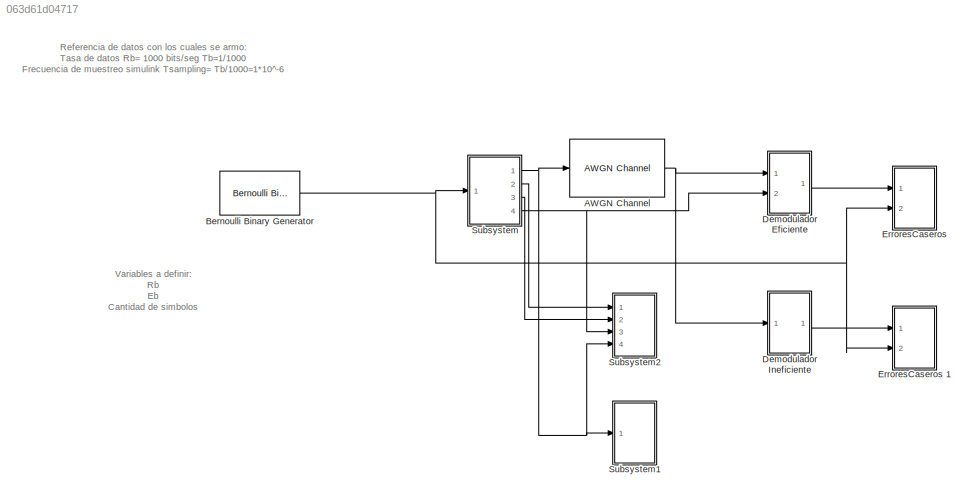
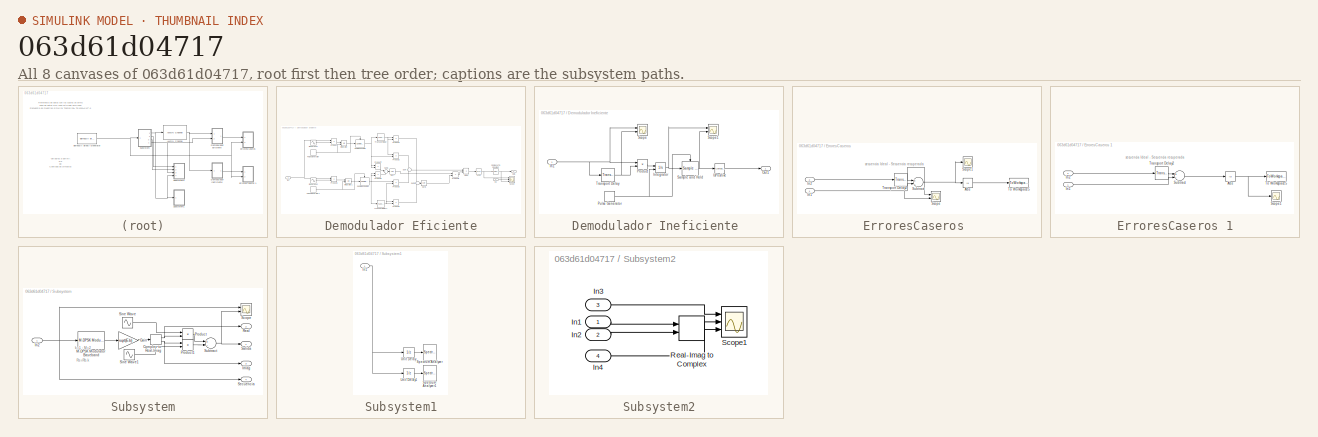
[diagram: thumbnail index - all 8 canvases of the model, root first then tree order]
MODEL slx_063d61d04717
KIND model
CONFIG AbsTol = auto
CONFIG EnableMultiTasking = off
CONFIG FixedStep = (1/Rb)/1000
CONFIG MaxStep = auto
CONFIG MinStep = auto
CONFIG RelTol = 1e-3
CONFIG SampleTimeConstraint = Unconstrained
CONFIG Solver = ode5
CONFIG SolverName = ode5
CONFIG StartTime = 0.0
CONFIG StopTime = (1/Rb)*CantSimb
BLOCK [Reference] AWGN Channel  REF=commchan3/AWGN
Channel
  Ports = [1, 1]
  SourceBlock = commchan3/AWGN\nChannel
  SourceProductBaseCode = CM
  SourceProductName = Communications Toolbox
  SourceType = AWGN Channel
  UserDataPersistent = on
BLOCK [Reference] Bernoulli Binary Generator  REF=commrandsrc3/Bernoulli Binary
Generator
  Ports = [0, 1]
  SourceBlock = commrandsrc3/Bernoulli Binary\nGenerator
  SourceProductBaseCode = CM
  SourceProductName = Communications Toolbox
  SourceType = Bernoulli Binary Generator
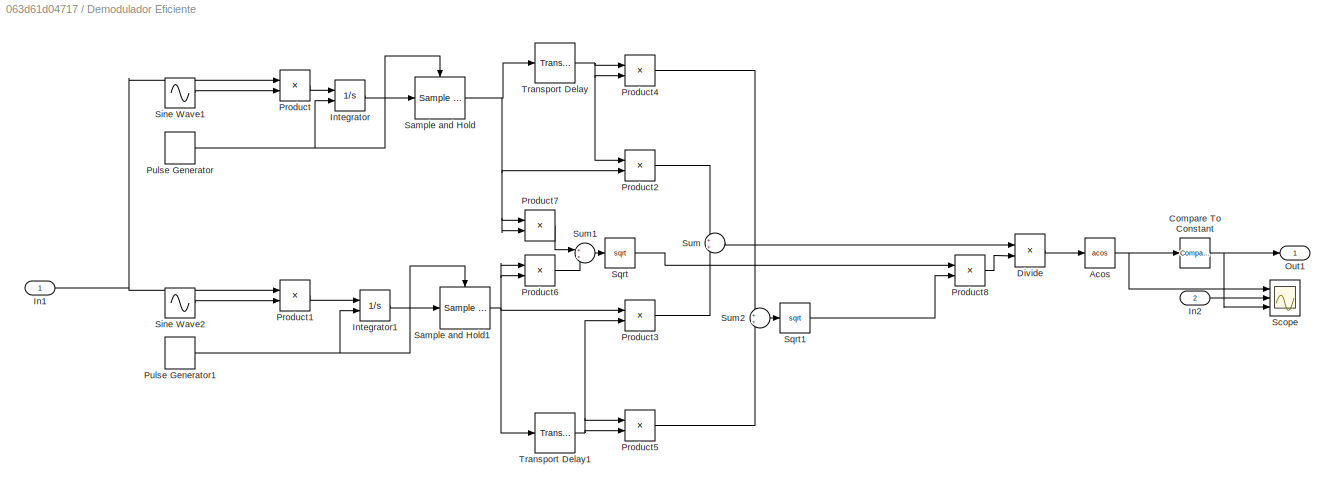
BLOCK [SubSystem] Demodulador Eficiente
  Ports = [2, 1]
  RequestExecContextInheritance = off
BLOCK [Trigonometry] Demodulador Eficiente/Acos
  Operator = acos
  Ports = [1, 1]
BLOCK [Reference] Demodulador Eficiente/Compare To Constant  REF=simulink/Logic and Bit
Operations/Compare
To Constant
  Ports = [1, 1]
  SourceBlock = simulink/Logic and Bit\nOperations/Compare\nTo Constant
  SourceProductBaseCode = SL
  SourceProductName = Simulink
  SourceType = Compare To Constant
BLOCK [Product] Demodulador Eficiente/Divide
  InputSameDT = off
  Inputs = */
  OutDataTypeStr = Inherit: Inherit via internal rule
  Ports = [2, 1]
  RndMeth = Floor
  SaturateOnIntegerOverflow = off
BLOCK [Inport] Demodulador Eficiente/In1
  IconDisplay = Port number
BLOCK [Inport] Demodulador Eficiente/In2
  IconDisplay = Port number
  Port = 2
BLOCK [Integrator] Demodulador Eficiente/Integrator
  ExternalReset = rising
  Ports = [2, 1]
BLOCK [Integrator] Demodulador Eficiente/Integrator1
  ExternalReset = rising
  Ports = [2, 1]
BLOCK [Outport] Demodulador Eficiente/Out1
  IconDisplay = Port number
BLOCK [Product] Demodulador Eficiente/Product
  InputSameDT = off
  OutDataTypeStr = Inherit: Inherit via internal rule
  Ports = [2, 1]
  RndMeth = Floor
  SaturateOnIntegerOverflow = off
BLOCK [Product] Demodulador Eficiente/Product1
  InputSameDT = off
  OutDataTypeStr = Inherit: Inherit via internal rule
  Ports = [2, 1]
  RndMeth = Floor
  SaturateOnIntegerOverflow = off
BLOCK [Product] Demodulador Eficiente/Product2
  InputSameDT = off
  OutDataTypeStr = Inherit: Inherit via internal rule
  Ports = [2, 1]
  RndMeth = Floor
  SaturateOnIntegerOverflow = off
BLOCK [Product] Demodulador Eficiente/Product3
  InputSameDT = off
  OutDataTypeStr = Inherit: Inherit via internal rule
  Ports = [2, 1]
  RndMeth = Floor
  SaturateOnIntegerOverflow = off
BLOCK [Product] Demodulador Eficiente/Product4
  InputSameDT = off
  OutDataTypeStr = Inherit: Inherit via internal rule
  Ports = [2, 1]
  RndMeth = Floor
  SaturateOnIntegerOverflow = off
BLOCK [Product] Demodulador Eficiente/Product5
  InputSameDT = off
  OutDataTypeStr = Inherit: Inherit via internal rule
  Ports = [2, 1]
  RndMeth = Floor
  SaturateOnIntegerOverflow = off
BLOCK [Product] Demodulador Eficiente/Product6
  InputSameDT = off
  OutDataTypeStr = Inherit: Inherit via internal rule
  Ports = [2, 1]
  RndMeth = Floor
  SaturateOnIntegerOverflow = off
BLOCK [Product] Demodulador Eficiente/Product7
  InputSameDT = off
  OutDataTypeStr = Inherit: Inherit via internal rule
  Ports = [2, 1]
  RndMeth = Floor
  SaturateOnIntegerOverflow = off
BLOCK [Product] Demodulador Eficiente/Product8
  InputSameDT = off
  OutDataTypeStr = Inherit: Inherit via internal rule
  Ports = [2, 1]
  RndMeth = Floor
  SaturateOnIntegerOverflow = off
BLOCK [DiscretePulseGenerator] Demodulador Eficiente/Pulse Generator
  Period = 1/Rb
  Ports = [0, 1]
  PulseType = Time based
  PulseWidth = 99
BLOCK [DiscretePulseGenerator] Demodulador Eficiente/Pulse Generator1
  Period = 1/Rb
  Ports = [0, 1]
  PulseType = Time based
  PulseWidth = 99
BLOCK [Reference] Demodulador Eficiente/Sample and Hold  REF=dspsigops/Sample
and Hold
  Ports = [1, 1, 0, 1]
  SourceBlock = dspsigops/Sample\nand Hold
  SourceProductBaseCode = DS
  SourceProductName = DSP System Toolbox
  SourceType = Sample and Hold
BLOCK [Reference] Demodulador Eficiente/Sample and Hold1  REF=dspsigops/Sample
and Hold
  Ports = [1, 1, 0, 1]
  SourceBlock = dspsigops/Sample\nand Hold
  SourceProductBaseCode = DS
  SourceProductName = DSP System Toolbox
  SourceType = Sample and Hold
BLOCK [Scope] Demodulador Eficiente/Scope
  Floating = off
  NumInputPorts = 3
  Ports = [3]
  ScopeSpecificationString = Simulink.scopes.TimeScopeBlockCfg('CurrentConfiguration', extmgr.ConfigurationSet(extmgr.Configuration('Core','General UI',true),extmgr.Configuration('Core','Source UI',true),extmgr.Configuration('Sources','WiredSimulink',true,'DataLoggingVariableName','ScopeData1'),extmgr.Configuration('Visuals','Time Domain',true,'SerializedDisplays',{struct('MinYLimReal','-0.3927','MaxYLimReal','3.53429','YLabe...<+2732ch>
BLOCK [Sin] Demodulador Eficiente/Sine Wave1
  Amplitude = sqrt(2/(1/Rb))
  Frequency = 2*pi*Fp
  Phase = pi/2
  Ports = [0, 1]
BLOCK [Sin] Demodulador Eficiente/Sine Wave2
  Amplitude = sqrt(2/(1/Rb))
  Frequency = 2*pi*Fp
  Ports = [0, 1]
BLOCK [Sqrt] Demodulador Eficiente/Sqrt
BLOCK [Sqrt] Demodulador Eficiente/Sqrt1
BLOCK [Sum] Demodulador Eficiente/Sum
  IconShape = round
  InputSameDT = off
  OutDataTypeStr = Inherit: Inherit via internal rule
  Ports = [2, 1]
  SaturateOnIntegerOverflow = off
BLOCK [Sum] Demodulador Eficiente/Sum1
  IconShape = round
  InputSameDT = off
  OutDataTypeStr = Inherit: Inherit via internal rule
  Ports = [2, 1]
  SaturateOnIntegerOverflow = off
BLOCK [Sum] Demodulador Eficiente/Sum2
  IconShape = round
  InputSameDT = off
  OutDataTypeStr = Inherit: Inherit via internal rule
  Ports = [2, 1]
  SaturateOnIntegerOverflow = off
BLOCK [TransportDelay] Demodulador Eficiente/Transport Delay
  DelayTime = 1/Rb
  Ports = [1, 1]
BLOCK [TransportDelay] Demodulador Eficiente/Transport Delay1
  DelayTime = 1/Rb
  Ports = [1, 1]
BLOCK [SubSystem] Demodulador Ineficiente 
  Ports = [1, 1]
  RequestExecContextInheritance = off
BLOCK [Inport] Demodulador Ineficiente /In1
  IconDisplay = Port number
BLOCK [Integrator] Demodulador Ineficiente /Integrator
  ExternalReset = rising
  Ports = [2, 1]
BLOCK [Reference] Demodulador Ineficiente /IsPositive  REF=simulink/Logic and Bit
Operations/Compare
To Zero
  Ports = [1, 1]
  SourceBlock = simulink/Logic and Bit\nOperations/Compare\nTo Zero
  SourceProductBaseCode = SL
  SourceProductName = Simulink
  SourceType = Compare To Zero
BLOCK [Outport] Demodulador Ineficiente /Out1
  IconDisplay = Port number
BLOCK [Product] Demodulador Ineficiente /Product
  InputSameDT = off
  OutDataTypeStr = Inherit: Inherit via internal rule
  Ports = [2, 1]
  RndMeth = Floor
  SaturateOnIntegerOverflow = off
BLOCK [DiscretePulseGenerator] Demodulador Ineficiente /Pulse Generator
  Period = 1/Rb
  Ports = [0, 1]
  PulseType = Time based
  PulseWidth = 99
BLOCK [Reference] Demodulador Ineficiente /Sample and Hold  REF=dspsigops/Sample
and Hold
  Ports = [1, 1, 0, 1]
  SourceBlock = dspsigops/Sample\nand Hold
  SourceProductBaseCode = DS
  SourceProductName = DSP System Toolbox
  SourceType = Sample and Hold
BLOCK [Scope] Demodulador Ineficiente /Scope
  Floating = off
  NumInputPorts = 2
  Ports = [2]
  ScopeSpecificationString = Simulink.scopes.TimeScopeBlockCfg('CurrentConfiguration', extmgr.ConfigurationSet(extmgr.Configuration('Core','General UI',true),extmgr.Configuration('Core','Source UI',true),extmgr.Configuration('Sources','WiredSimulink',true,'DataLoggingVariableName','ScopeData1'),extmgr.Configuration('Visuals','Time Domain',true,'SerializedDisplays',{struct('MinYLimReal','-172.16028','MaxYLimReal','147.29622','...<+2012ch>
BLOCK [Scope] Demodulador Ineficiente /Scope1
  Floating = off
  NumInputPorts = 2
  Ports = [2]
  ScopeSpecificationString = Simulink.scopes.TimeScopeBlockCfg('CurrentConfiguration', extmgr.ConfigurationSet(extmgr.Configuration('Core','General UI',true),extmgr.Configuration('Core','Source UI',true),extmgr.Configuration('Sources','WiredSimulink',true,'DataLoggingVariableName','ScopeData2'),extmgr.Configuration('Visuals','Time Domain',true,'SerializedDisplays',{struct('MinYLimReal','-23.97213','MaxYLimReal','28.00783','YL...<+2036ch>
BLOCK [TransportDelay] Demodulador Ineficiente /Transport Delay
  DelayTime = (1/Rb)
  Ports = [1, 1]
BLOCK [SubSystem] ErroresCaseros 
  Ports = [2]
  RequestExecContextInheritance = off
BLOCK [Abs] ErroresCaseros /Abs
  SaturateOnIntegerOverflow = off
BLOCK [Inport] ErroresCaseros /In1
  IconDisplay = Port number
BLOCK [Inport] ErroresCaseros /In2
  IconDisplay = Port number
  Port = 2
BLOCK [Scope] ErroresCaseros /Scope
  Floating = off
  NumInputPorts = 2
  Ports = [2]
  ScopeSpecificationString = Simulink.scopes.TimeScopeBlockCfg('CurrentConfiguration', extmgr.ConfigurationSet(extmgr.Configuration('Core','General UI',true),extmgr.Configuration('Core','Source UI',true),extmgr.Configuration('Sources','WiredSimulink',true,'DataLoggingVariableName','ScopeData1'),extmgr.Configuration('Visuals','Time Domain',true,'SerializedDisplays',{struct('MinYLimReal','-0.125','MaxYLimReal','1.12286','YLabel...<+2053ch>
BLOCK [Scope] ErroresCaseros /Scope1
  Floating = off
  NumInputPorts = 1
  Ports = [1]
  ScopeSpecificationString = Simulink.scopes.TimeScopeBlockCfg('CurrentConfiguration', extmgr.ConfigurationSet(extmgr.Configuration('Core','General UI',true),extmgr.Configuration('Core','Source UI',true),extmgr.Configuration('Sources','WiredSimulink',true,'DataLoggingVariableName','ScopeData2'),extmgr.Configuration('Visuals','Time Domain',true,'SerializedDisplays',{struct('MinYLimReal','-0.125','MaxYLimReal','1.125','YLabelRe...<+1461ch>
BLOCK [Sum] ErroresCaseros /Subtract
  InputSameDT = off
  Inputs = +-
  OutDataTypeStr = Inherit: Inherit via internal rule
  Ports = [2, 1]
  SaturateOnIntegerOverflow = off
BLOCK [ToWorkspace] ErroresCaseros /To Workspace5
  FixptAsFi = on
  MaxDataPoints = inf
  Ports = [1]
  SampleTime = -1
  Save2DSignal = 2-D array (concatenate along first dimension)
  VariableName = ErrOpt
BLOCK [TransportDelay] ErroresCaseros /Transport Delay2
  DelayTime = (1/Rb)
  Ports = [1, 1]
BLOCK [SubSystem] ErroresCaseros 1
  Ports = [2]
  RequestExecContextInheritance = off
BLOCK [Abs] ErroresCaseros 1/Abs
  SaturateOnIntegerOverflow = off
BLOCK [Inport] ErroresCaseros 1/In1
  IconDisplay = Port number
BLOCK [Inport] ErroresCaseros 1/In2
  IconDisplay = Port number
  Port = 2
BLOCK [Scope] ErroresCaseros 1/Scope1
  Floating = off
  NumInputPorts = 1
  Ports = [1]
  ScopeSpecificationString = Simulink.scopes.TimeScopeBlockCfg('CurrentConfiguration', extmgr.ConfigurationSet(extmgr.Configuration('Core','General UI',true),extmgr.Configuration('Core','Source UI',true),extmgr.Configuration('Sources','WiredSimulink',true,'DataLoggingVariableName','ScopeData3'),extmgr.Configuration('Visuals','Time Domain',true,'SerializedDisplays',{struct('MinYLimReal','-0.125','MaxYLimReal','1.125','YLabelRe...<+1456ch>
BLOCK [Sum] ErroresCaseros 1/Subtract
  InputSameDT = off
  Inputs = +-
  OutDataTypeStr = Inherit: Inherit via internal rule
  Ports = [2, 1]
  SaturateOnIntegerOverflow = off
BLOCK [ToWorkspace] ErroresCaseros 1/To Workspace5
  FixptAsFi = on
  MaxDataPoints = inf
  Ports = [1]
  SampleTime = -1
  Save2DSignal = 2-D array (concatenate along first dimension)
  VariableName = ErrNOpt
BLOCK [TransportDelay] ErroresCaseros 1/Transport Delay2
  DelayTime = (1/Rb)
  Ports = [1, 1]
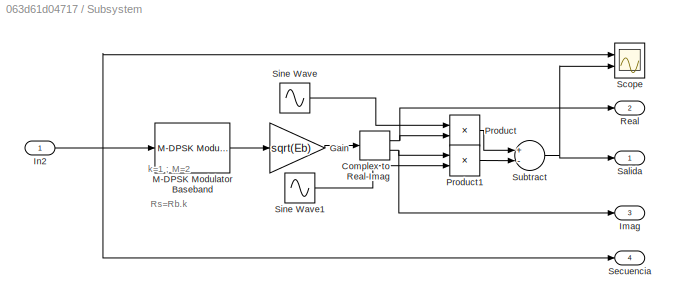
BLOCK [SubSystem] Subsystem
  Ports = [1, 4]
  RequestExecContextInheritance = off
BLOCK [ComplexToRealImag] Subsystem/Complex to Real-Imag
  Ports = [1, 2]
BLOCK [Gain] Subsystem/Gain
  Gain = sqrt(Eb)
  OutDataTypeStr = Inherit: Inherit via internal rule
  ParamDataTypeStr = Inherit: Inherit via internal rule
  SaturateOnIntegerOverflow = off
BLOCK [Outport] Subsystem/Imag
  IconDisplay = Port number
  Port = 3
BLOCK [Inport] Subsystem/In2
  IconDisplay = Port number
BLOCK [Reference] Subsystem/M-DPSK Modulator Baseband  REF=commdigbbndpm3/M-DPSK
Modulator
Baseband
  Ports = [1, 1]
  SourceBlock = commdigbbndpm3/M-DPSK\nModulator\nBaseband
  SourceProductBaseCode = CM
  SourceProductName = Communications Toolbox
  SourceType = M-DPSK Modulator Baseband
BLOCK [Product] Subsystem/Product
  InputSameDT = off
  OutDataTypeStr = Inherit: Inherit via internal rule
  Ports = [2, 1]
  RndMeth = Floor
  SaturateOnIntegerOverflow = off
BLOCK [Product] Subsystem/Product1
  InputSameDT = off
  OutDataTypeStr = Inherit: Inherit via internal rule
  Ports = [2, 1]
  RndMeth = Floor
  SaturateOnIntegerOverflow = off
BLOCK [Outport] Subsystem/Real
  IconDisplay = Port number
  Port = 2
BLOCK [Outport] Subsystem/Salida
  IconDisplay = Port number
BLOCK [Scope] Subsystem/Scope
  Floating = off
  NumInputPorts = 2
  Ports = [2]
  ScopeSpecificationString = Simulink.scopes.TimeScopeBlockCfg('CurrentConfiguration', extmgr.ConfigurationSet(extmgr.Configuration('Core','General UI',true),extmgr.Configuration('Core','Source UI',true),extmgr.Configuration('Sources','WiredSimulink',true),extmgr.Configuration('Visuals','Time Domain',true,'SerializedDisplays',{struct('MinYLimReal','-0.125','MaxYLimReal','1.125','YLabelReal','','MinYLimMag','0.00000','MaxYLimM...<+1999ch>
BLOCK [Outport] Subsystem/Secuencia 
  IconDisplay = Port number
  Port = 4
BLOCK [Sin] Subsystem/Sine Wave
  Amplitude = sqrt(2/(1/Rb))
  Frequency = 2*pi*Fp
  Phase = pi/2
  Ports = [0, 1]
BLOCK [Sin] Subsystem/Sine Wave1
  Amplitude = sqrt(2/(1/Rb))
  Frequency = 2*pi*Fp
  Ports = [0, 1]
BLOCK [Sum] Subsystem/Subtract
  InputSameDT = off
  Inputs = +-
  OutDataTypeStr = Inherit: Inherit via internal rule
  Ports = [2, 1]
  SaturateOnIntegerOverflow = off
BLOCK [SubSystem] Subsystem1
  Ports = [1]
  RequestExecContextInheritance = off
BLOCK [Inport] Subsystem1/In1
  IconDisplay = Port number
BLOCK [SpectrumAnalyzer] Subsystem1/Spectrum Analyzer
  Ports = [1]
  ScopeSpecificationString = spbscopes.SpectrumAnalyzerBlockCfg('CurrentConfiguration', extmgr.ConfigurationSet(extmgr.Configuration('Core','General UI',true),extmgr.Configuration('Core','Source UI',true),extmgr.Configuration('Sources','WiredSimulink',true),extmgr.Configuration('Visuals','Spectrum',true,'AxesProperties',struct('Color',{[0 0 0],[0 0 0]},'XColor',{[0.686274509803922 0.686274509803922 0.686274509803922],[0.68627...<+3206ch>
BLOCK [SpectrumAnalyzer] Subsystem1/Spectrum Analyzer1
  Ports = [1]
  ScopeSpecificationString = spbscopes.SpectrumAnalyzerBlockCfg('CurrentConfiguration', extmgr.ConfigurationSet(extmgr.Configuration('Core','General UI',true),extmgr.Configuration('Core','Source UI',true),extmgr.Configuration('Sources','WiredSimulink',true),extmgr.Configuration('Visuals','Spectrum',true,'AxesProperties',struct('Color',{[0 0 0],[0 0 0]},'XColor',{[0.686274509803922 0.686274509803922 0.686274509803922],[0.68627...<+3278ch>
BLOCK [UnitDelay] Subsystem1/Unit Delay
  InputProcessing = Elements as channels (sample based)
  SampleTime = -1
BLOCK [UnitDelay] Subsystem1/Unit Delay1
  InputProcessing = Elements as channels (sample based)
  SampleTime = -1
BLOCK [SubSystem] Subsystem2
  Ports = [4]
  RequestExecContextInheritance = off
BLOCK [Inport] Subsystem2/In1
  IconDisplay = Port number
BLOCK [Inport] Subsystem2/In2
  IconDisplay = Port number
  Port = 2
BLOCK [Inport] Subsystem2/In3
  IconDisplay = Port number
  Port = 3
BLOCK [Inport] Subsystem2/In4
  IconDisplay = Port number
  Port = 4
BLOCK [RealImagToComplex] Subsystem2/Real-Imag to Complex
  Ports = [2, 1]
BLOCK [Scope] Subsystem2/Scope1
  Floating = off
  NumInputPorts = 3
  Ports = [3]
  ScopeSpecificationString = Simulink.scopes.TimeScopeBlockCfg('CurrentConfiguration', extmgr.ConfigurationSet(extmgr.Configuration('Core','General UI',true),extmgr.Configuration('Core','Source UI',true),extmgr.Configuration('Sources','WiredSimulink',true,'DataLoggingVariableName','ScopeData1'),extmgr.Configuration('Visuals','Time Domain',true,'SerializedDisplays',{struct('MinYLimReal','-0.125','MaxYLimReal','1.125','YLabelRe...<+2847ch>
ANNOTATION (root): Referencia de datos con los cuales se armo: Tasa de datos Rb= 1000 bits/seg Tb=1/1000 Frecuencia de muestreo simulink Tsampling= Tb/1000=1*10^-6
ANNOTATION (root): Variables a definir: Rb Eb Cantidad de simbolos
ANNOTATION ErroresCaseros : secuencia Ideal - Secuencia recuperada
ANNOTATION ErroresCaseros 1: secuencia Ideal - Secuencia recuperada
ANNOTATION Subsystem: k=1 ; M=2 Rs=Rb.k
NET AWGN Channel:1 -> Demodulador Eficiente:1, Demodulador Ineficiente :1
NET Bernoulli Binary Generator:1 -> ErroresCaseros 1:2, ErroresCaseros :2, Subsystem:1
NET Demodulador Eficiente/Acos:1 -> Demodulador Eficiente/Compare To Constant:1, Demodulador Eficiente/Scope:1
NET Demodulador Eficiente/Compare To Constant:1 -> Demodulador Eficiente/Out1:1, Demodulador Eficiente/Scope:3
LINE Demodulador Eficiente/Divide:1 -> Demodulador Eficiente/Acos:1
NET Demodulador Eficiente/In1:1 -> Demodulador Eficiente/Product1:1, Demodulador Eficiente/Product:1
LINE Demodulador Eficiente/In2:1 -> Demodulador Eficiente/Scope:2
LINE Demodulador Eficiente/Integrator1:1 -> Demodulador Eficiente/Sample and Hold1:1
LINE Demodulador Eficiente/Integrator:1 -> Demodulador Eficiente/Sample and Hold:1
LINE Demodulador Eficiente/Product1:1 -> Demodulador Eficiente/Integrator1:1
LINE Demodulador Eficiente/Product2:1 -> Demodulador Eficiente/Sum:1
LINE Demodulador Eficiente/Product3:1 -> Demodulador Eficiente/Sum:2
LINE Demodulador Eficiente/Product4:1 -> Demodulador Eficiente/Sum2:1
LINE Demodulador Eficiente/Product5:1 -> Demodulador Eficiente/Sum2:2
LINE Demodulador Eficiente/Product6:1 -> Demodulador Eficiente/Sum1:2
LINE Demodulador Eficiente/Product7:1 -> Demodulador Eficiente/Sum1:1
LINE Demodulador Eficiente/Product8:1 -> Demodulador Eficiente/Divide:2
LINE Demodulador Eficiente/Product:1 -> Demodulador Eficiente/Integrator:1
NET Demodulador Eficiente/Pulse Generator1:1 -> Demodulador Eficiente/Integrator1:2, Demodulador Eficiente/Sample and Hold1:trigger
NET Demodulador Eficiente/Pulse Generator:1 -> Demodulador Eficiente/Integrator:2, Demodulador Eficiente/Sample and Hold:trigger
NET Demodulador Eficiente/Sample and Hold1:1 -> Demodulador Eficiente/Product3:1, Demodulador Eficiente/Product6:1, Demodulador Eficiente/Product6:2, Demodulador Eficiente/Transport Delay1:1
NET Demodulador Eficiente/Sample and Hold:1 -> Demodulador Eficiente/Product2:2, Demodulador Eficiente/Product7:1, Demodulador Eficiente/Product7:2, Demodulador Eficiente/Transport Delay:1
LINE Demodulador Eficiente/Sine Wave1:1 -> Demodulador Eficiente/Product:2
LINE Demodulador Eficiente/Sine Wave2:1 -> Demodulador Eficiente/Product1:2
LINE Demodulador Eficiente/Sqrt1:1 -> Demodulador Eficiente/Product8:2
LINE Demodulador Eficiente/Sqrt:1 -> Demodulador Eficiente/Product8:1
LINE Demodulador Eficiente/Sum1:1 -> Demodulador Eficiente/Sqrt:1
LINE Demodulador Eficiente/Sum2:1 -> Demodulador Eficiente/Sqrt1:1
LINE Demodulador Eficiente/Sum:1 -> Demodulador Eficiente/Divide:1
NET Demodulador Eficiente/Transport Delay1:1 -> Demodulador Eficiente/Product3:2, Demodulador Eficiente/Product5:1, Demodulador Eficiente/Product5:2
NET Demodulador Eficiente/Transport Delay:1 -> Demodulador Eficiente/Product2:1, Demodulador Eficiente/Product4:1, Demodulador Eficiente/Product4:2
LINE Demodulador Eficiente:1 -> ErroresCaseros :1
NET Demodulador Ineficiente /In1:1 -> Demodulador Ineficiente /Product:1, Demodulador Ineficiente /Scope:1, Demodulador Ineficiente /Transport Delay:1
NET Demodulador Ineficiente /Integrator:1 -> Demodulador Ineficiente /Sample and Hold:1, Demodulador Ineficiente /Scope1:1
LINE Demodulador Ineficiente /IsPositive:1 -> Demodulador Ineficiente /Out1:1
LINE Demodulador Ineficiente /Product:1 -> Demodulador Ineficiente /Integrator:1
NET Demodulador Ineficiente /Pulse Generator:1 -> Demodulador Ineficiente /Integrator:2, Demodulador Ineficiente /Sample and Hold:trigger
NET Demodulador Ineficiente /Sample and Hold:1 -> Demodulador Ineficiente /IsPositive:1, Demodulador Ineficiente /Scope1:2
NET Demodulador Ineficiente /Transport Delay:1 -> Demodulador Ineficiente /Product:2, Demodulador Ineficiente /Scope:2
LINE Demodulador Ineficiente :1 -> ErroresCaseros 1:1
LINE ErroresCaseros /Abs:1 -> ErroresCaseros /To Workspace5:1
NET ErroresCaseros /In1:1 -> ErroresCaseros /Scope:2, ErroresCaseros /Subtract:2
LINE ErroresCaseros /In2:1 -> ErroresCaseros /Transport Delay2:1
NET ErroresCaseros /Subtract:1 -> ErroresCaseros /Abs:1, ErroresCaseros /Scope1:1
NET ErroresCaseros /Transport Delay2:1 -> ErroresCaseros /Scope:1, ErroresCaseros /Subtract:1
NET ErroresCaseros 1/Abs:1 -> ErroresCaseros 1/Scope1:1, ErroresCaseros 1/To Workspace5:1
LINE ErroresCaseros 1/In1:1 -> ErroresCaseros 1/Subtract:2
LINE ErroresCaseros 1/In2:1 -> ErroresCaseros 1/Transport Delay2:1
LINE ErroresCaseros 1/Subtract:1 -> ErroresCaseros 1/Abs:1
LINE ErroresCaseros 1/Transport Delay2:1 -> ErroresCaseros 1/Subtract:1
NET Subsystem/Complex to Real-Imag:1 -> Subsystem/Product:2, Subsystem/Real:1
NET Subsystem/Complex to Real-Imag:2 -> Subsystem/Imag:1, Subsystem/Product1:1
LINE Subsystem/Gain:1 -> Subsystem/Complex to Real-Imag:1
NET Subsystem/In2:1 -> Subsystem/M-DPSK Modulator Baseband:1, Subsystem/Scope:1, Subsystem/Secuencia :1
LINE Subsystem/M-DPSK Modulator Baseband:1 -> Subsystem/Gain:1
LINE Subsystem/Product1:1 -> Subsystem/Subtract:2
LINE Subsystem/Product:1 -> Subsystem/Subtract:1
LINE Subsystem/Sine Wave1:1 -> Subsystem/Product1:2
LINE Subsystem/Sine Wave:1 -> Subsystem/Product:1
NET Subsystem/Subtract:1 -> Subsystem/Salida:1, Subsystem/Scope:2
NET Subsystem1/In1:1 -> Subsystem1/Unit Delay1:1, Subsystem1/Unit Delay:1
LINE Subsystem1/Unit Delay1:1 -> Subsystem1/Spectrum Analyzer1:1
LINE Subsystem1/Unit Delay:1 -> Subsystem1/Spectrum Analyzer:1
LINE Subsystem2/In1:1 -> Subsystem2/Real-Imag to Complex:1
LINE Subsystem2/In2:1 -> Subsystem2/Real-Imag to Complex:2
LINE Subsystem2/In3:1 -> Subsystem2/Scope1:1
LINE Subsystem2/In4:1 -> Subsystem2/Scope1:2
LINE Subsystem2/Real-Imag to Complex:1 -> Subsystem2/Scope1:3
NET Subsystem:1 -> AWGN Channel:1, Subsystem1:1, Subsystem2:4
LINE Subsystem:2 -> Subsystem2:1
LINE Subsystem:3 -> Subsystem2:2
NET Subsystem:4 -> Demodulador Eficiente:2, Subsystem2:3
note: NET lines group one-source signal fan-out (src -> all destinations, sorted); 1:1 wires keep LINE
